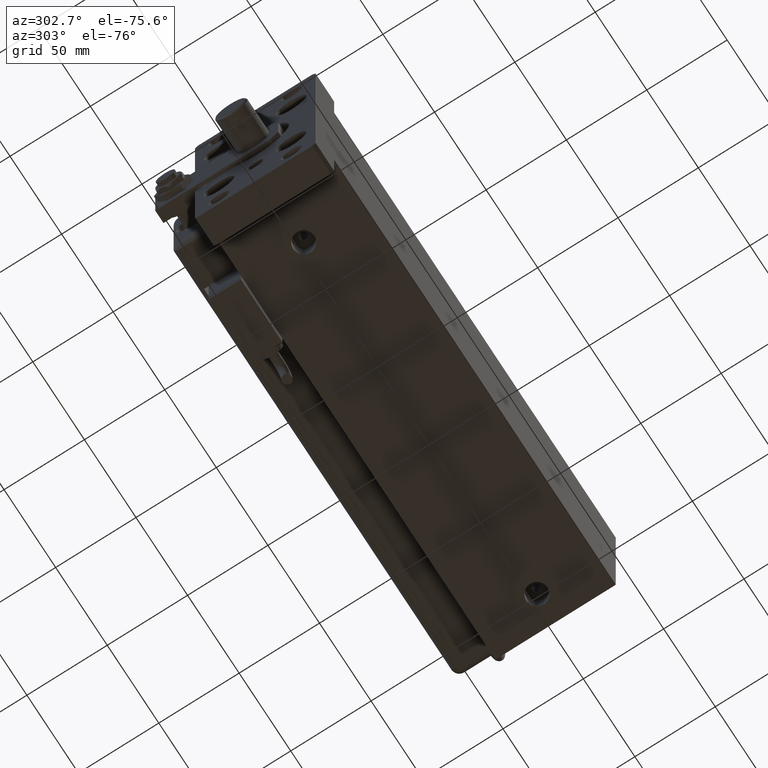
[diagram: clean part render]
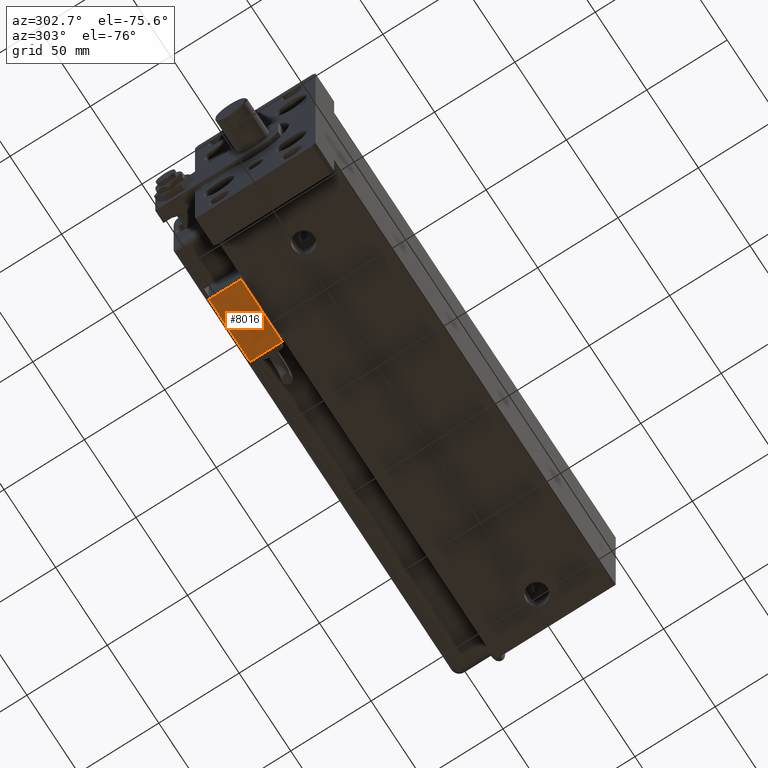
[diagram: same view with one face highlighted and labeled with its STEP entity id]
A machine part, auxiliary view. The second image highlights one B-rep face of the part: STEP entity #8016.
In plain terms, the highlighted planar face has unit normal (0, 0, 1).
Its self-contained STEP definition (entity closure, byte-faithful):
#920 = CARTESIAN_POINT ( 'NONE',  ( 20.00000000000005329, -17.49999999999996092, -9.999999999999998224 ) ) ;
#1240 = LINE ( 'NONE', #920, #43156 ) ;
#2819 = DIRECTION ( 'NONE',  ( -1.000000000000000000, -0.000000000000000000, -0.000000000000000000 ) ) ;
#3336 = VERTEX_POINT ( 'NONE', #44960 ) ;
#3514 = VECTOR ( 'NONE', #48231, 1000.000000000000000 ) ;
#4176 = VERTEX_POINT ( 'NONE', #11568 ) ;
#6688 = ORIENTED_EDGE ( 'NONE', *, *, #55984, .T. ) ;
#8016 = ADVANCED_FACE ( 'NONE', ( #42750 ), #51893, .F. ) ;
#8580 = DIRECTION ( 'NONE',  ( 0.000000000000000000, -0.000000000000000000, 1.000000000000000000 ) ) ;
#8904 = CARTESIAN_POINT ( 'NONE',  ( 0.000000000000000000, -17.49999999999996092, 0.000000000000000000 ) ) ;
#9825 = VECTOR ( 'NONE', #2819, 1000.000000000000000 ) ;
#10619 = ORIENTED_EDGE ( 'NONE', *, *, #35858, .T. ) ;
#10945 = VERTEX_POINT ( 'NONE', #31328 ) ;
#11568 = CARTESIAN_POINT ( 'NONE',  ( 20.00000000000005329, -17.49999999999996092, -9.999999999999998224 ) ) ;
#12292 = CARTESIAN_POINT ( 'NONE',  ( -19.99999999999994316, -17.49999999999996092, 10.00000000000000000 ) ) ;
#20100 = VECTOR ( 'NONE', #59753, 1000.000000000000000 ) ;
#20499 = AXIS2_PLACEMENT_3D ( 'NONE', #8904, #51285, #8580 ) ;
#25611 = LINE ( 'NONE', #59132, #20100 ) ;
#28923 = LINE ( 'NONE', #47049, #3514 ) ;
#30477 = EDGE_CURVE ( 'NONE', #4176, #37839, #1240, .T. ) ;
#31328 = CARTESIAN_POINT ( 'NONE',  ( -19.99999999999994316, -17.49999999999996092, 10.00000000000000000 ) ) ;
#35858 = EDGE_CURVE ( 'NONE', #10945, #3336, #25611, .T. ) ;
#37839 = VERTEX_POINT ( 'NONE', #40125 ) ;
#40125 = CARTESIAN_POINT ( 'NONE',  ( 20.00000000000005329, -17.49999999999996092, 10.00000000000000000 ) ) ;
#41787 = ORIENTED_EDGE ( 'NONE', *, *, #62532, .T. ) ;
#42750 = FACE_OUTER_BOUND ( 'NONE', #45341, .T. ) ;
#43156 = VECTOR ( 'NONE', #54363, 1000.000000000000000 ) ;
#44960 = CARTESIAN_POINT ( 'NONE',  ( -19.99999999999994316, -17.49999999999996092, -9.999999999999998224 ) ) ;
#45341 = EDGE_LOOP ( 'NONE', ( #47465, #41787, #10619, #6688 ) ) ;
#47049 = CARTESIAN_POINT ( 'NONE',  ( -19.99999999999994316, -17.49999999999996092, -9.999999999999998224 ) ) ;
#47465 = ORIENTED_EDGE ( 'NONE', *, *, #30477, .T. ) ;
#48231 = DIRECTION ( 'NONE',  ( 1.000000000000000000, 0.000000000000000000, 0.000000000000000000 ) ) ;
#51285 = DIRECTION ( 'NONE',  ( 0.000000000000000000, 1.000000000000000000, 0.000000000000000000 ) ) ;
#51893 = PLANE ( 'NONE',  #20499 ) ;
#54363 = DIRECTION ( 'NONE',  ( 0.000000000000000000, 0.000000000000000000, 1.000000000000000000 ) ) ;
#55615 = LINE ( 'NONE', #12292, #9825 ) ;
#55984 = EDGE_CURVE ( 'NONE', #3336, #4176, #28923, .T. ) ;
#59132 = CARTESIAN_POINT ( 'NONE',  ( -19.99999999999994316, -17.49999999999996092, -9.999999999999998224 ) ) ;
#59753 = DIRECTION ( 'NONE',  ( -0.000000000000000000, -0.000000000000000000, -1.000000000000000000 ) ) ;
#62532 = EDGE_CURVE ( 'NONE', #37839, #10945, #55615, .T. ) ;